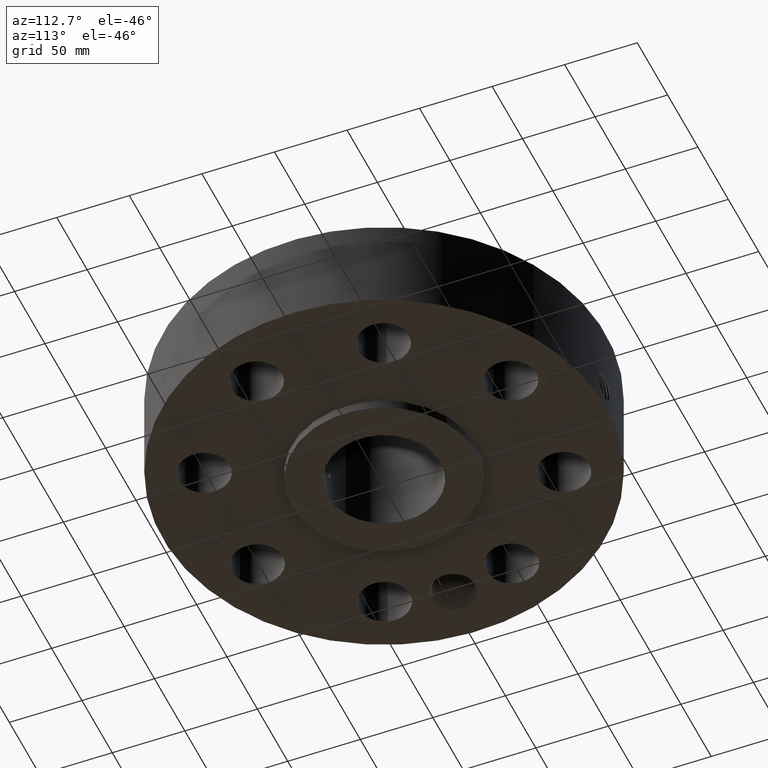
[diagram: clean part render]
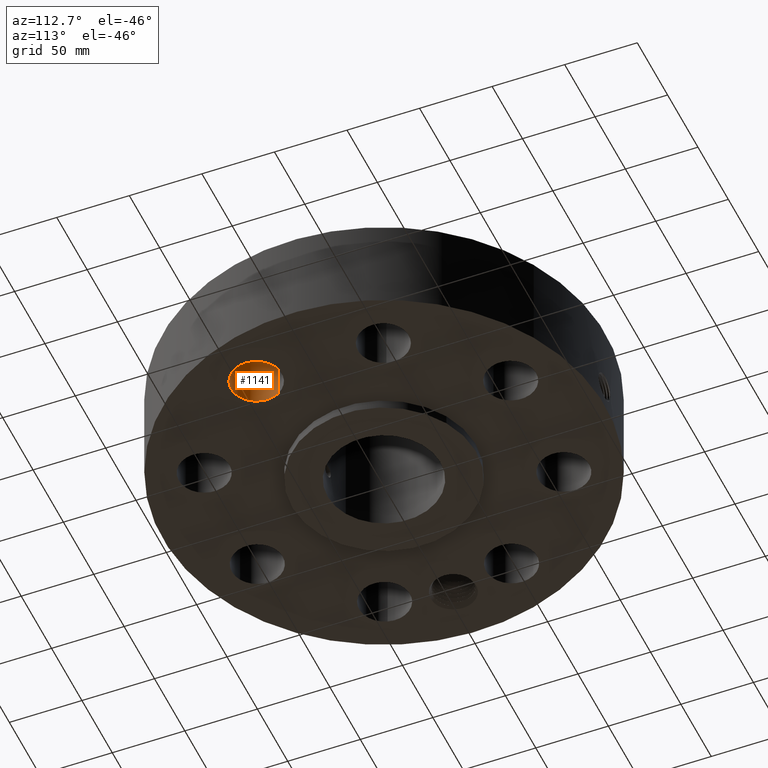
[diagram: same view with one face highlighted and labeled with its STEP entity id]
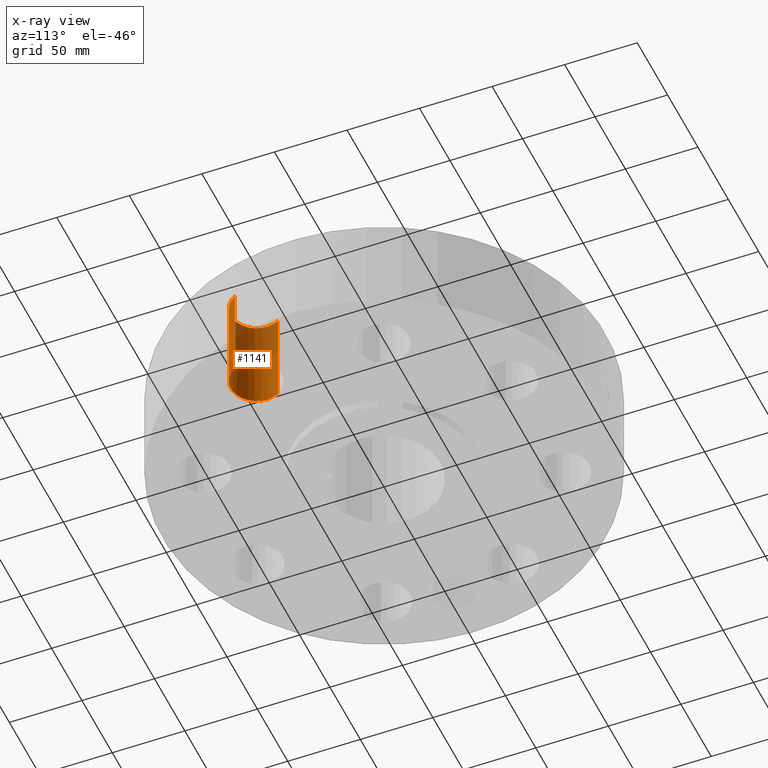
[diagram: x-ray of the same camera — body ghosted, the highlighted face saturated]
A machine part, auxiliary view. The second image highlights one B-rep face of the part: STEP entity #1141.
The next image is the same camera in x-ray: the body ghosted, the highlighted face saturated — about 36% of this face is hidden behind the body in this view.
In plain terms, the highlighted cylindrical surface (edge-blend (fillet) strip) has radius 17.526 mm, axis along (0, -0, -1).
Its self-contained STEP definition (entity closure, byte-faithful):
#228=AXIS2_PLACEMENT_3D('Circle Axis2P3D',#226,#227,$) ;
#558=AXIS2_PLACEMENT_3D('Circle Axis2P3D',#556,#557,$) ;
#1123=AXIS2_PLACEMENT_3D('Cylinder Axis2P3D',#1120,#1121,#1122) ;
#226=CARTESIAN_POINT('Axis2P3D Location',(4.15745789632,-1.72207544565,0.250000000001)) ;
#230=CARTESIAN_POINT('Vertex',(4.76298986402,-2.05287906729,0.250000000001)) ;
#232=CARTESIAN_POINT('Vertex',(3.55192592861,-1.39127182401,0.250000000001)) ;
#551=CARTESIAN_POINT('Vertex',(3.55192592861,-1.39127182401,2.87000000001)) ;
#553=CARTESIAN_POINT('Vertex',(4.76298986402,-2.05287906729,2.87000000001)) ;
#556=CARTESIAN_POINT('Axis2P3D Location',(4.15745789632,-1.72207544565,2.87000000001)) ;
#1120=CARTESIAN_POINT('Axis2P3D Location',(4.15745789632,-1.72207544565,2.86606299214)) ;
#1125=CARTESIAN_POINT('Line Origine',(4.76298986402,-2.05287906729,1.56000000001)) ;
#1130=CARTESIAN_POINT('Line Origine',(3.55192592861,-1.39127182401,1.56000000001)) ;
#227=DIRECTION('Axis2P3D Direction',(0.,0.,-0.0393700787402)) ;
#557=DIRECTION('Axis2P3D Direction',(0.,0.,-0.0393700787402)) ;
#1121=DIRECTION('Axis2P3D Direction',(0.,-0.,-0.0393700787402)) ;
#1122=DIRECTION('Axis2P3D XDirection',(-0.0345504945626,0.0188750212049,0.)) ;
#1126=DIRECTION('Vector Direction',(0.,0.,-0.0393700787402)) ;
#1131=DIRECTION('Vector Direction',(0.,0.,-0.0393700787402)) ;
#1127=VECTOR('Line Direction',#1126,0.0393700787402) ;
#1132=VECTOR('Line Direction',#1131,0.0393700787402) ;
#1136=ORIENTED_EDGE('',*,*,#1129,.F.) ;
#1137=ORIENTED_EDGE('',*,*,#234,.T.) ;
#1138=ORIENTED_EDGE('',*,*,#1134,.T.) ;
#1139=ORIENTED_EDGE('',*,*,#560,.F.) ;
#1141=ADVANCED_FACE('PartBody',(#1140),#1124,.F.) ;
#229=CIRCLE('generated circle',#228,0.690000000003) ;
#559=CIRCLE('generated circle',#558,0.690000000003) ;
#1124=CYLINDRICAL_SURFACE('generated cylinder',#1123,0.690000000003) ;
#234=EDGE_CURVE('',#231,#233,#229,.T.) ;
#560=EDGE_CURVE('',#554,#552,#559,.T.) ;
#1129=EDGE_CURVE('',#231,#554,#1128,.F.) ;
#1134=EDGE_CURVE('',#233,#552,#1133,.F.) ;
#1135=EDGE_LOOP('',(#1136,#1137,#1138,#1139)) ;
#1140=FACE_OUTER_BOUND('',#1135,.T.) ;
#1128=LINE('Line',#1125,#1127) ;
#1133=LINE('Line',#1130,#1132) ;
#231=VERTEX_POINT('',#230) ;
#233=VERTEX_POINT('',#232) ;
#552=VERTEX_POINT('',#551) ;
#554=VERTEX_POINT('',#553) ;